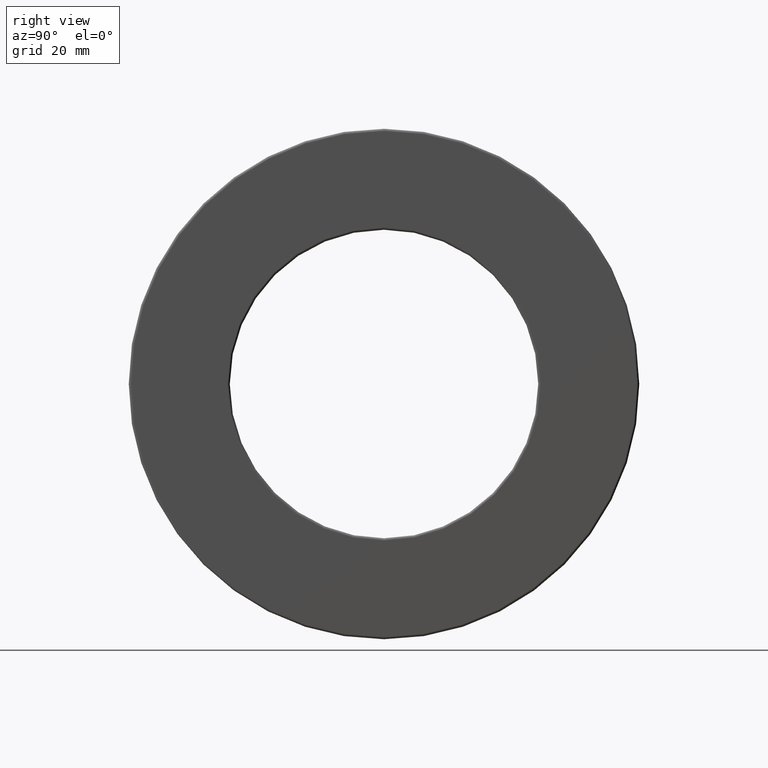
[diagram: clean part render]
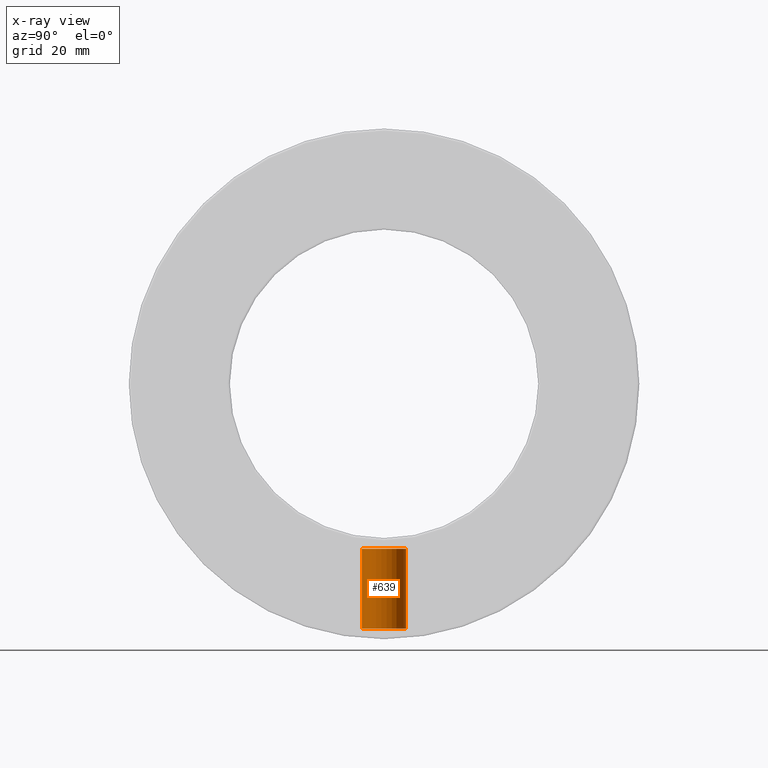
[diagram: x-ray — body ghosted, one internal face saturated and labeled with its STEP entity id]
A machine part, right view, then the same camera in x-ray: the body is ghosted and one INTERNAL B-rep face — a face not visible from any outside direction — is saturated and labeled: STEP entity #639.
In plain terms, the highlighted cylindrical surface (bore or boss wall) has radius 4.7625 mm, axis along (0, -0, -1).
Its self-contained STEP definition (entity closure, byte-faithful):
#4 = ORIENTED_EDGE ( 'NONE', *, *, #1387, .T. ) ;
#69 = CARTESIAN_POINT ( 'NONE',  ( 0.0000000000000000000, -4.896802577727495000E-015, -1.402500000000000100 ) ) ;
#109 = DIRECTION ( 'NONE',  ( 0.0000000000000000000, 1.000000000000000000, -3.491481338843133400E-015 ) ) ;
#163 = ORIENTED_EDGE ( 'NONE', *, *, #353, .F. ) ;
#308 = DIRECTION ( 'NONE',  ( 0.0000000000000000000, -3.491481338843133400E-015, -1.000000000000000000 ) ) ;
#353 = EDGE_CURVE ( 'NONE', #1157, #1157, #1192, .T. ) ;
#509 = AXIS2_PLACEMENT_3D ( 'NONE', #69, #308, #963 ) ;
#514 = CIRCLE ( 'NONE', #509, 0.1875000000000000600 ) ;
#566 = AXIS2_PLACEMENT_3D ( 'NONE', #968, #1193, #109 ) ;
#617 = VERTEX_POINT ( 'NONE', #926 ) ;
#639 = ADVANCED_FACE ( 'NONE', ( #812, #1304 ), #1456, .T. ) ;
#812 = FACE_OUTER_BOUND ( 'NONE', #1127, .T. ) ;
#848 = EDGE_LOOP ( 'NONE', ( #163 ) ) ;
#869 = CARTESIAN_POINT ( 'NONE',  ( 0.0000000000000000000, 0.1874999999999926400, -2.081875000000000100 ) ) ;
#926 = CARTESIAN_POINT ( 'NONE',  ( 0.0000000000000000000, 0.1874999999999951700, -1.402500000000000700 ) ) ;
#963 = DIRECTION ( 'NONE',  ( 0.0000000000000000000, 1.000000000000000000, -2.913971193241880000E-015 ) ) ;
#965 = AXIS2_PLACEMENT_3D ( 'NONE', #1219, #1223, #1343 ) ;
#968 = CARTESIAN_POINT ( 'NONE',  ( 0.0000000000000000000, 0.0000000000000000000, 0.0000000000000000000 ) ) ;
#1127 = EDGE_LOOP ( 'NONE', ( #4 ) ) ;
#1157 = VERTEX_POINT ( 'NONE', #869 ) ;
#1192 = CIRCLE ( 'NONE', #965, 0.1874999999999999200 ) ;
#1193 = DIRECTION ( 'NONE',  ( 0.0000000000000000000, -3.491481338843133400E-015, -1.000000000000000000 ) ) ;
#1219 = CARTESIAN_POINT ( 'NONE',  ( 0.0000000000000000000, -7.268827712304046400E-015, -2.081874999999999700 ) ) ;
#1223 = DIRECTION ( 'NONE',  ( 0.0000000000000000000, -3.491481338843133400E-015, -1.000000000000000000 ) ) ;
#1304 = FACE_OUTER_BOUND ( 'NONE', #848, .T. ) ;
#1343 = DIRECTION ( 'NONE',  ( 0.0000000000000000000, 1.000000000000000000, -2.913971193241881900E-015 ) ) ;
#1387 = EDGE_CURVE ( 'NONE', #617, #617, #514, .T. ) ;
#1456 = CYLINDRICAL_SURFACE ( 'NONE', #566, 0.1874999999999999700 ) ;